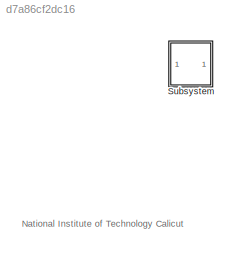
MODEL slx_d7a86cf2dc16
KIND model
CONFIG AbsTol = auto
CONFIG EnableMultiTasking = off
CONFIG FixedStep = auto
CONFIG MaxStep = auto
CONFIG MinStep = auto
CONFIG RelTol = 1e-3
CONFIG SampleTimeConstraint = Unconstrained
CONFIG SolverName = VariableStepAuto
CONFIG StartTime = 0.0
CONFIG StopTime = 0.02
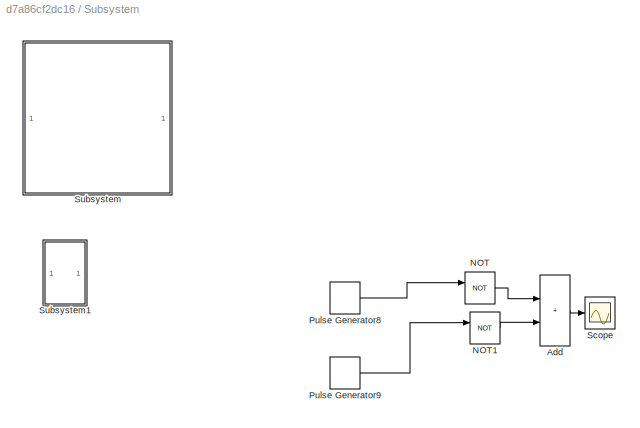
BLOCK [SubSystem] Subsystem
BLOCK [Sum] Subsystem/Add
  IconShape = rectangular
BLOCK [Logic] Subsystem/NOT
  AllPortsSameDT = off
  IconShape = distinctive
  Operator = NOT
  OutDataTypeStr = boolean
BLOCK [Logic] Subsystem/NOT1
  AllPortsSameDT = off
  IconShape = distinctive
  Operator = NOT
  OutDataTypeStr = boolean
BLOCK [DiscretePulseGenerator] Subsystem/Pulse Generator8
  Period = 0.02
  PulseType = Time based
  PulseWidth = (8/14)*100
BLOCK [DiscretePulseGenerator] Subsystem/Pulse Generator9
  Period = 0.02
  PhaseDelay = (13/14)*0.02
  PulseType = Time based
  PulseWidth = (1/14)*100
BLOCK [Scope] Subsystem/Scope
  Floating = off
  NumInputPorts = 1
  ScopeSpecificationString = Simulink.scopes.TimeScopeBlockCfg('CurrentConfiguration', extmgr.ConfigurationSet(extmgr.Configuration('Core','General UI',true),extmgr.Configuration('Core','Source UI',true),extmgr.Configuration('Sources','WiredSimulink',true),extmgr.Configuration('Visuals','Time Domain',true),extmgr.Configuration('Tools','Plot Navigation',true),extmgr.Configuration('Tools','Measurements',true,'Version','2023a'))...<+87ch>
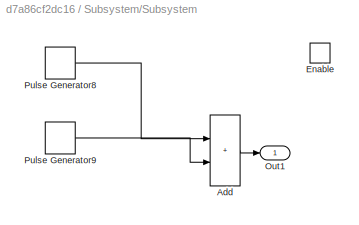
BLOCK [SubSystem] Subsystem/Subsystem
BLOCK [Sum] Subsystem/Subsystem/Add
  IconShape = rectangular
BLOCK [EnablePort] Subsystem/Subsystem/Enable
BLOCK [Outport] Subsystem/Subsystem/Out1
BLOCK [DiscretePulseGenerator] Subsystem/Subsystem/Pulse Generator8
  Period = 0.02
  PulseType = Time based
  PulseWidth = (8/14)*100
BLOCK [DiscretePulseGenerator] Subsystem/Subsystem/Pulse Generator9
  Period = 0.02
  PhaseDelay = (13/14)*0.02
  PulseType = Time based
  PulseWidth = (1/14)*100
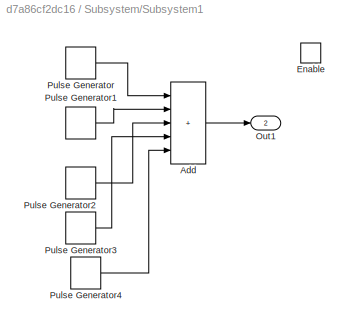
BLOCK [SubSystem] Subsystem/Subsystem1
BLOCK [Sum] Subsystem/Subsystem1/Add
  IconShape = rectangular
  Inputs = +++++
BLOCK [EnablePort] Subsystem/Subsystem1/Enable
BLOCK [Outport] Subsystem/Subsystem1/Out1
  Port = 2
BLOCK [DiscretePulseGenerator] Subsystem/Subsystem1/Pulse Generator
  Period = 0.02
  PhaseDelay = (1/14)*0.02
  PulseType = Time based
  PulseWidth = (1/14)*100
BLOCK [DiscretePulseGenerator] Subsystem/Subsystem1/Pulse Generator1
  Period = 0.02
  PhaseDelay = (3/14)*0.02
  PulseType = Time based
  PulseWidth = (1/14)*100
BLOCK [DiscretePulseGenerator] Subsystem/Subsystem1/Pulse Generator2
  Period = 0.02
  PhaseDelay = (5/14)*0.02
  PulseType = Time based
  PulseWidth = (1/14)*100
BLOCK [DiscretePulseGenerator] Subsystem/Subsystem1/Pulse Generator3
  Period = 0.02
  PhaseDelay = (9/14)*0.02
  PulseType = Time based
  PulseWidth = (1/14)*100
BLOCK [DiscretePulseGenerator] Subsystem/Subsystem1/Pulse Generator4
  Period = 0.02
  PhaseDelay = (11/14)*0.02
  PulseType = Time based
  PulseWidth = (1/14)*100
ANNOTATION (root): National Institute of Technology Calicut
LINE Subsystem/Add:1 -> Subsystem/Scope:1
LINE Subsystem/NOT1:1 -> Subsystem/Add:2
LINE Subsystem/NOT:1 -> Subsystem/Add:1
LINE Subsystem/Pulse Generator8:1 -> Subsystem/NOT:1
LINE Subsystem/Pulse Generator9:1 -> Subsystem/NOT1:1
LINE Subsystem/Subsystem/Add:1 -> Subsystem/Subsystem/Out1:1
LINE Subsystem/Subsystem/Pulse Generator8:1 -> Subsystem/Subsystem/Add:1
LINE Subsystem/Subsystem/Pulse Generator9:1 -> Subsystem/Subsystem/Add:2
LINE Subsystem/Subsystem1/Add:1 -> Subsystem/Subsystem1/Out1:1
LINE Subsystem/Subsystem1/Pulse Generator1:1 -> Subsystem/Subsystem1/Add:2
LINE Subsystem/Subsystem1/Pulse Generator2:1 -> Subsystem/Subsystem1/Add:3
LINE Subsystem/Subsystem1/Pulse Generator3:1 -> Subsystem/Subsystem1/Add:4
LINE Subsystem/Subsystem1/Pulse Generator4:1 -> Subsystem/Subsystem1/Add:5
LINE Subsystem/Subsystem1/Pulse Generator:1 -> Subsystem/Subsystem1/Add:1
